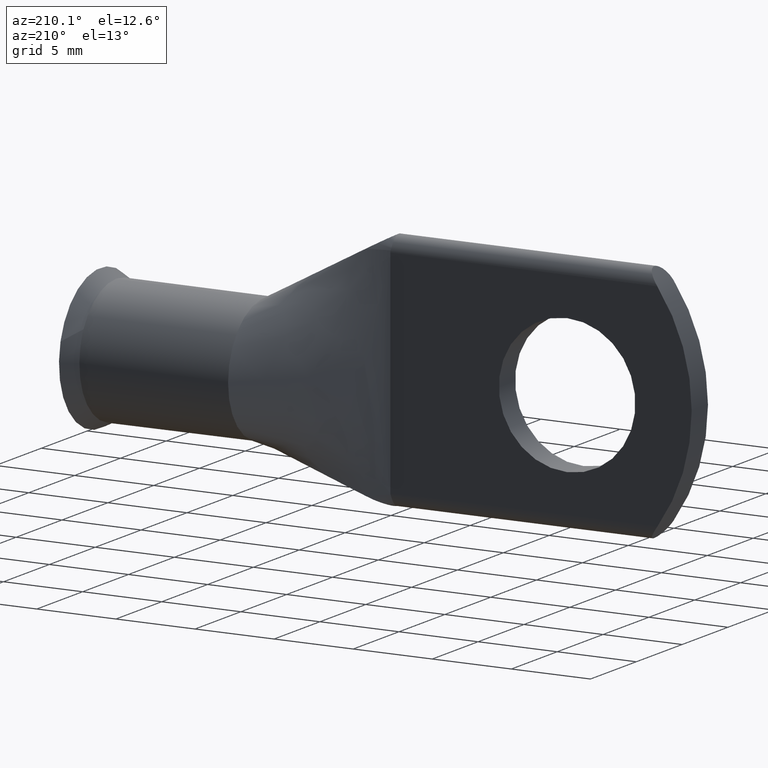
[diagram: clean part render]
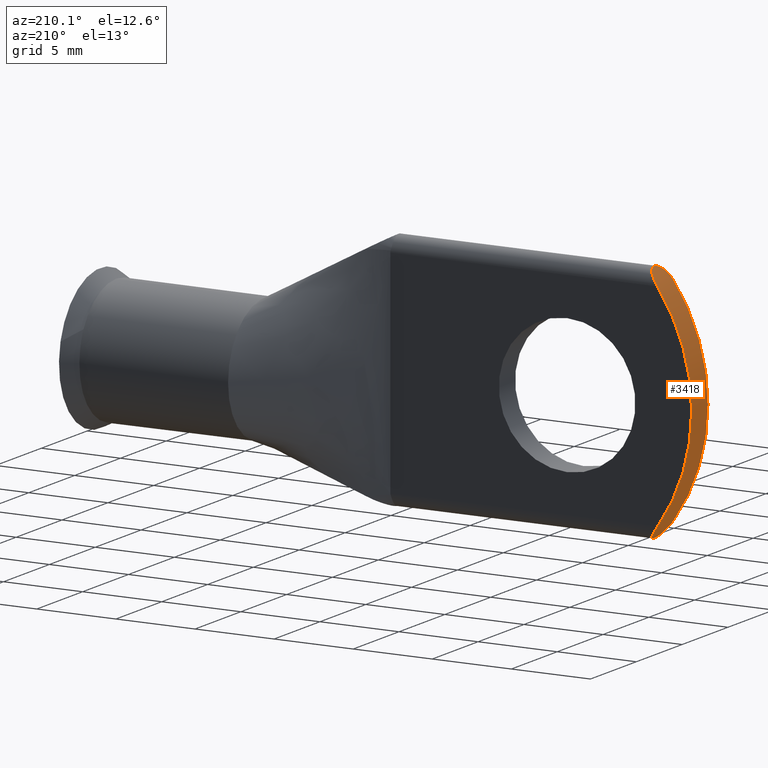
[diagram: same view with one face highlighted and labeled with its STEP entity id]
A machine part, auxiliary view. The second image highlights one B-rep face of the part: STEP entity #3418.
In plain terms, the highlighted cylindrical surface (partial cylindrical patch) has radius 11.5261 mm, axis along (-0, -1, -0).
Its self-contained STEP definition (entity closure, byte-faithful):
#125 = VERTEX_POINT ( 'NONE', #1474 ) ;
#152 = EDGE_CURVE ( 'NONE', #125, #4105, #2752, .T. ) ;
#153 = EDGE_CURVE ( 'NONE', #2252, #1094, #1484, .T. ) ;
#202 = CARTESIAN_POINT ( 'NONE',  ( -0.2616836775498984635, -0.005179025719108384246, -0.3000025572484777414 ) ) ;
#224 = CARTESIAN_POINT ( 'NONE',  ( -0.2834633502137768324, -0.03425486486124001279, 0.2733534014814879010 ) ) ;
#315 = CARTESIAN_POINT ( 'NONE',  ( -0.2895837638798836600, -0.03500000000000000333, 0.2650000000001048184 ) ) ;
#330 = CARTESIAN_POINT ( 'NONE',  ( -0.2895837638798836600, -0.03500000000000000333, 0.2650000000001048184 ) ) ;
#374 = DIRECTION ( 'NONE',  ( 0.000000000000000000, 0.000000000000000000, -1.000000000000000000 ) ) ;
#518 = DIRECTION ( 'NONE',  ( -0.000000000000000000, -1.000000000000000000, 0.000000000000000000 ) ) ;
#567 = CARTESIAN_POINT ( 'NONE',  ( -0.2834743393358717389, -0.03499999999999999639, -0.2734924949168693886 ) ) ;
#588 = CARTESIAN_POINT ( 'NONE',  ( -0.2627867928555659427, 0.01043765686973277367, 0.2987583837882578641 ) ) ;
#609 = CARTESIAN_POINT ( 'NONE',  ( -0.2743949359536118626, -0.02884601989957428017, 0.2849385659482650546 ) ) ;
#664 = CARTESIAN_POINT ( 'NONE',  ( 0.07878336083534218104, -0.03500000000000000333, 2.954160186844080923E-17 ) ) ;
#849 = ORIENTED_EDGE ( 'NONE', *, *, #1990, .T. ) ;
#866 = CARTESIAN_POINT ( 'NONE',  ( -0.2664440434012765313, 0.01944868069837066976, -0.2945255958694171783 ) ) ;
#872 = CARTESIAN_POINT ( 'NONE',  ( -0.2616781295809448848, 0.005135201212187055081, 0.3000088536268601946 ) ) ;
#889 = CARTESIAN_POINT ( 'NONE',  ( -0.2834704106815698066, 0.03499999999996507988, 0.2734979560002211429 ) ) ;
#907 = EDGE_CURVE ( 'NONE', #2252, #4105, #3414, .T. ) ;
#913 = CYLINDRICAL_SURFACE ( 'NONE', #2435, 0.4537833608353421533 ) ;
#930 = CARTESIAN_POINT ( 'NONE',  ( -0.2702499950351798796, -0.02459853998020612026, 0.2899996115271939456 ) ) ;
#945 = CARTESIAN_POINT ( 'NONE',  ( -0.2773284324398532785, 0.03106641838537308256, -0.2812637396049865735 ) ) ;
#953 = CARTESIAN_POINT ( 'NONE',  ( -0.2619540295296268750, -0.005287919779046875053, 0.2996964647722069053 ) ) ;
#1094 = VERTEX_POINT ( 'NONE', #2995 ) ;
#1113 = CARTESIAN_POINT ( 'NONE',  ( -0.2688582124091014047, -0.02307069264997357178, -0.2916896836943931315 ) ) ;
#1234 = CARTESIAN_POINT ( 'NONE',  ( -0.2895837638799520497, -0.03500000000000000333, -0.2650000000000097833 ) ) ;
#1257 = DIRECTION ( 'NONE',  ( 0.000000000000000000, 0.000000000000000000, -1.000000000000000000 ) ) ;
#1267 = CARTESIAN_POINT ( 'NONE',  ( -0.2865347519629266593, 0.03500000000000001027, -0.2692383235966032129 ) ) ;
#1295 = CARTESIAN_POINT ( 'NONE',  ( -0.2743857353190808368, 0.02883822920560016878, -0.2849499781500695050 ) ) ;
#1373 = ORIENTED_EDGE ( 'NONE', *, *, #907, .F. ) ;
#1456 = CARTESIAN_POINT ( 'NONE',  ( -0.2769913032663370855, -0.03195178794130498767, -0.2818093553392261863 ) ) ;
#1474 = CARTESIAN_POINT ( 'NONE',  ( -0.2616859215040125974, -2.958307349119333037E-10, -0.3000000106130662481 ) ) ;
#1484 = B_SPLINE_CURVE_WITH_KNOTS ( 'NONE', 3,
 ( #315, #3162, #224, #2169, #1596, #609, #2227, #930, #3800, #3820, #2892, #1529, #1919, #953, #4203, #872, #588, #3492, #1620, #2186, #889, #4222 ),
 .UNSPECIFIED., .F., .F.,
 ( 4, 2, 2, 2, 2, 2, 2, 2, 2, 2, 4 ),
 ( 0.000000000000000000, 0.1250000000000009714, 0.1875000000000008882, 0.2500000000000008327, 0.3125000000000007772, 0.3750000000000007216, 0.4375000000000006661, 0.5000000000000005551, 0.6250000000000004441, 0.7500000000000002220, 1.000000000000000000 ),
 .UNSPECIFIED. ) ;
#1511 = ORIENTED_EDGE ( 'NONE', *, *, #153, .T. ) ;
#1529 = CARTESIAN_POINT ( 'NONE',  ( -0.2636890017488939808, -0.01268902379767045292, 0.2977146471182592347 ) ) ;
#1596 = CARTESIAN_POINT ( 'NONE',  ( -0.2773362420367741499, -0.03107150293698887275, 0.2812538428850464567 ) ) ;
#1620 = CARTESIAN_POINT ( 'NONE',  ( -0.2688469925908735791, 0.02305574451661754343, 0.2917030699562286333 ) ) ;
#1694 = AXIS2_PLACEMENT_3D ( 'NONE', #664, #2581, #374 ) ;
#1836 = CARTESIAN_POINT ( 'NONE',  ( -0.2616859215040125974, -2.958307349119333037E-10, -0.3000000106130662481 ) ) ;
#1919 = CARTESIAN_POINT ( 'NONE',  ( -0.2629765632204794645, -0.01036981569144211114, 0.2985298887867797180 ) ) ;
#1933 = CARTESIAN_POINT ( 'NONE',  ( -0.2616859215040125974, -2.958307349119333037E-10, -0.3000000106130662481 ) ) ;
#1990 = EDGE_CURVE ( 'NONE', #3473, #125, #3405, .T. ) ;
#2164 = CARTESIAN_POINT ( 'NONE',  ( -0.2629677630876860461, 0.01033760574121221631, -0.2985399553761402536 ) ) ;
#2169 = CARTESIAN_POINT ( 'NONE',  ( -0.2788408507758114996, -0.03199889698188979753, 0.2793396098651520498 ) ) ;
#2186 = CARTESIAN_POINT ( 'NONE',  ( -0.2769823687644089039, 0.03194740900939847805, 0.2818206956733276813 ) ) ;
#2208 = CARTESIAN_POINT ( 'NONE',  ( 0.07878336083534218104, 0.03500000000000000333, 2.954160186844080923E-17 ) ) ;
#2227 = CARTESIAN_POINT ( 'NONE',  ( -0.2730106554842282041, -0.02759660872354196062, 0.2866444283043152463 ) ) ;
#2239 = CARTESIAN_POINT ( 'NONE',  ( -0.2619490604946085321, 0.005251541765493537677, -0.2997021066213411689 ) ) ;
#2252 = VERTEX_POINT ( 'NONE', #330 ) ;
#2368 = ORIENTED_EDGE ( 'NONE', *, *, #152, .T. ) ;
#2435 = AXIS2_PLACEMENT_3D ( 'NONE', #2208, #2871, #1257 ) ;
#2471 = EDGE_CURVE ( 'NONE', #1094, #3473, #2838, .T. ) ;
#2482 = CARTESIAN_POINT ( 'NONE',  ( -0.2730003519135536516, 0.02758679802376155787, -0.2866570765478364535 ) ) ;
#2488 = FACE_OUTER_BOUND ( 'NONE', #4144, .T. ) ;
#2581 = DIRECTION ( 'NONE',  ( -0.000000000000000000, -1.000000000000000000, 0.000000000000000000 ) ) ;
#2583 = CARTESIAN_POINT ( 'NONE',  ( -0.2636793436793802292, 0.01266065747782905981, -0.2977257492379065673 ) ) ;
#2752 = B_SPLINE_CURVE_WITH_KNOTS ( 'NONE', 3,
 ( #1836, #202, #4120, #3765, #1113, #1456, #567, #1234 ),
 .UNSPECIFIED., .F., .F.,
 ( 4, 2, 2, 4 ),
 ( 0.5003213174616968351, 0.6252409880962725985, 0.7501606587308483620, 1.000000000000000000 ),
 .UNSPECIFIED. ) ;
#2803 = CARTESIAN_POINT ( 'NONE',  ( -0.2895837638799520497, 0.03500000000000000333, -0.2650000000000097833 ) ) ;
#2838 = CIRCLE ( 'NONE', #3682, 0.4537833608353421533 ) ;
#2871 = DIRECTION ( 'NONE',  ( -0.000000000000000000, -1.000000000000000000, -0.000000000000000000 ) ) ;
#2892 = CARTESIAN_POINT ( 'NONE',  ( -0.2655341438421753852, -0.01720994419929262539, 0.2955787309929888695 ) ) ;
#2995 = CARTESIAN_POINT ( 'NONE',  ( -0.2895837638798836600, 0.03500000000000000333, 0.2650000000001048184 ) ) ;
#3162 = CARTESIAN_POINT ( 'NONE',  ( -0.2865367101066145783, -0.03500000000000000333, 0.2692356016503364979 ) ) ;
#3184 = CARTESIAN_POINT ( 'NONE',  ( -0.2895837638799520497, 0.03500000000000000333, -0.2650000000000097833 ) ) ;
#3405 = B_SPLINE_CURVE_WITH_KNOTS ( 'NONE', 3,
 ( #2803, #1267, #4116, #3874, #945, #1295, #2482, #3795, #866, #2583, #2164, #2239, #3572, #1933 ),
 .UNSPECIFIED., .F., .F.,
 ( 4, 2, 2, 2, 2, 2, 4 ),
 ( 0.000000000000000000, 0.1250803293654240145, 0.1876204940481360217, 0.2501606587308480290, 0.3752409880962725430, 0.4377811527789847168, 0.5003213174616968351 ),
 .UNSPECIFIED. ) ;
#3414 = CIRCLE ( 'NONE', #1694, 0.4537833608353421533 ) ;
#3418 = ADVANCED_FACE ( 'NONE', ( #2488 ), #913, .T. ) ;
#3473 = VERTEX_POINT ( 'NONE', #3184 ) ;
#3492 = CARTESIAN_POINT ( 'NONE',  ( -0.2663448127775777108, 0.01923598979275992216, 0.2946409434461081389 ) ) ;
#3572 = CARTESIAN_POINT ( 'NONE',  ( -0.2616870308609374751, 0.002592842779031170452, -0.2999987515841754937 ) ) ;
#3682 = AXIS2_PLACEMENT_3D ( 'NONE', #3695, #518, #3714 ) ;
#3695 = CARTESIAN_POINT ( 'NONE',  ( 0.07878336083534218104, 0.03500000000000000333, 2.954160186844080923E-17 ) ) ;
#3714 = DIRECTION ( 'NONE',  ( 0.000000000000000000, 0.000000000000000000, -1.000000000000000000 ) ) ;
#3765 = CARTESIAN_POINT ( 'NONE',  ( -0.2663568872884133354, -0.01925693701574031358, -0.2946268254799820907 ) ) ;
#3795 = CARTESIAN_POINT ( 'NONE',  ( -0.2688583445459509780, 0.02308443794123379855, -0.2916907083332116457 ) ) ;
#3800 = CARTESIAN_POINT ( 'NONE',  ( -0.2689744740427864600, -0.02295501165952524777, 0.2915257819959107266 ) ) ;
#3820 = CARTESIAN_POINT ( 'NONE',  ( -0.2665746791214850808, -0.01919052491495818955, 0.2943647695031278988 ) ) ;
#3874 = CARTESIAN_POINT ( 'NONE',  ( -0.2788340004126547700, 0.03199505002199157233, -0.2793483926128500494 ) ) ;
#3914 = ORIENTED_EDGE ( 'NONE', *, *, #2471, .T. ) ;
#4105 = VERTEX_POINT ( 'NONE', #4201 ) ;
#4116 = CARTESIAN_POINT ( 'NONE',  ( -0.2834592279300597872, 0.03425385752086496094, -0.2733589165491739359 ) ) ;
#4120 = CARTESIAN_POINT ( 'NONE',  ( -0.2627953138154168200, -0.01046758705805678896, -0.2987486672625844220 ) ) ;
#4144 = EDGE_LOOP ( 'NONE', ( #3914, #849, #2368, #1373, #1511 ) ) ;
#4201 = CARTESIAN_POINT ( 'NONE',  ( -0.2895837638799520497, -0.03500000000000000333, -0.2650000000000097833 ) ) ;
#4203 = CARTESIAN_POINT ( 'NONE',  ( -0.2616898615772214054, -0.002627504944613743253, 0.2999955390101897157 ) ) ;
#4222 = CARTESIAN_POINT ( 'NONE',  ( -0.2895837638798836600, 0.03500000000000000333, 0.2650000000001048184 ) ) ;